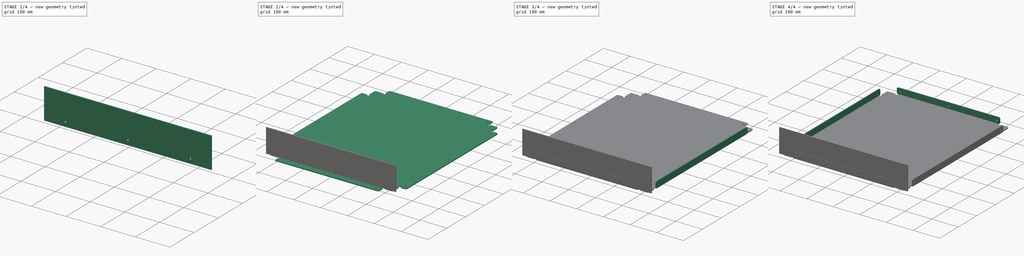
[diagram: build sequence overview — one tinted view per stage of 4, left to right]
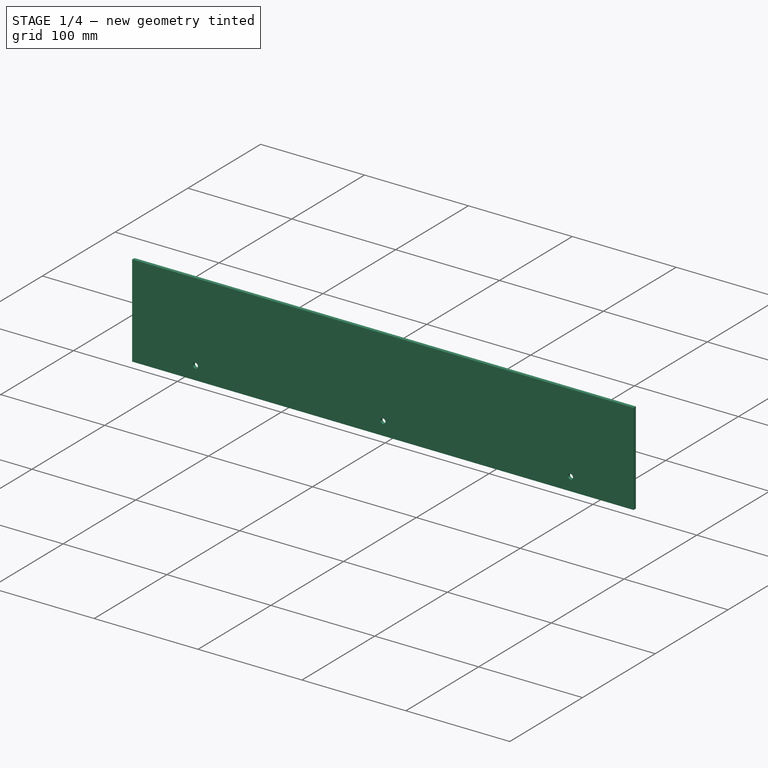
[diagram: stage 1 of 4 — iso view after this stage's code; geometry added in this stage tinted green]
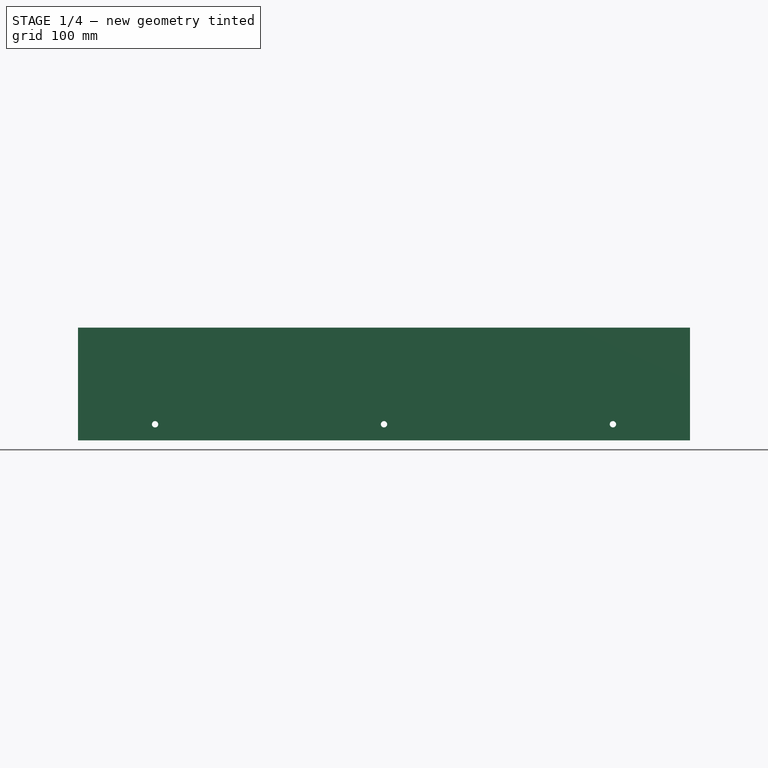
[diagram: stage 1 of 4 — front view after this stage's code; geometry added in this stage tinted green]
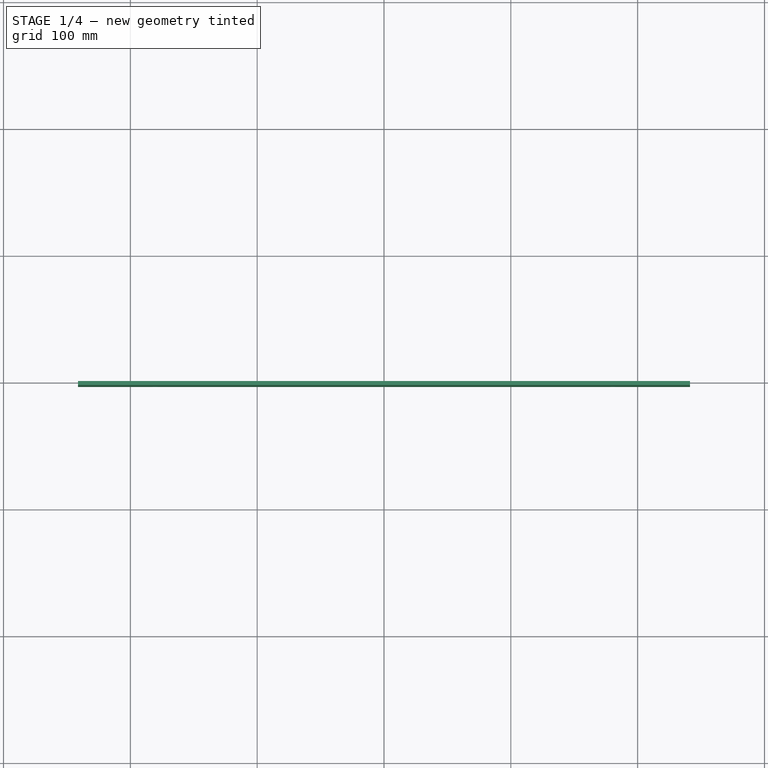
[diagram: stage 1 of 4 — top view after this stage's code; geometry added in this stage tinted green]
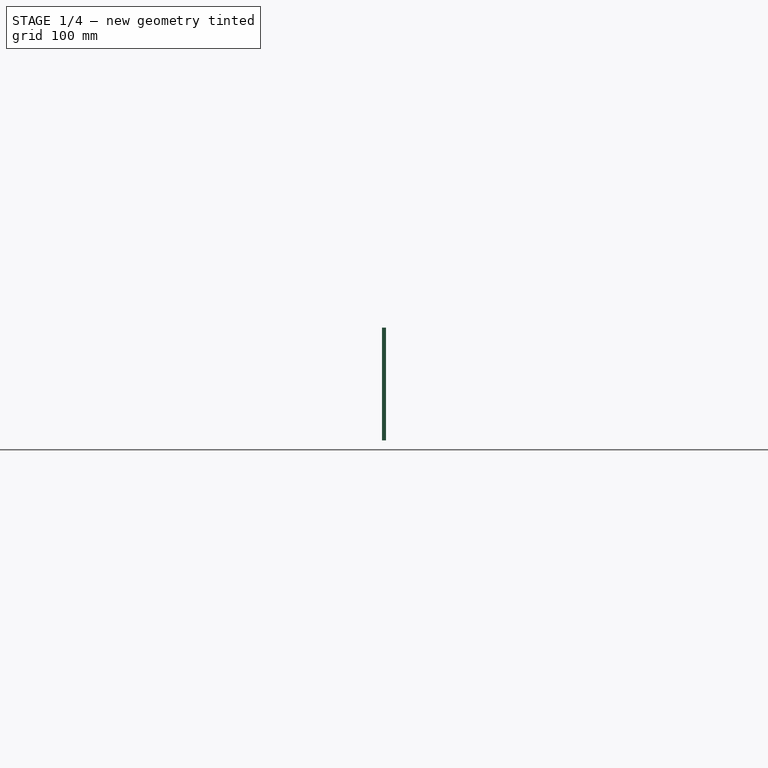
[diagram: stage 1 of 4 — right view after this stage's code; geometry added in this stage tinted green]
FCSTD DOCUMENT  (FreeCAD 0.19R24291 (Git))
Label: TwoU_Chassis
License: All rights reserved
LicenseURL: http://en.wikipedia.org/wiki/All_rights_reserved
objects: Sketcher::SketchObject×9, PartDesign::FeaturePython×4, PartDesign::Pocket×3, PartDesign::Pad×2, PartDesign::Body×2, App::Part×2, Spreadsheet::Sheet×1
note: 25 computed .brp shape members not serialized (recipe doc carries the construction recipe); baked Part::Feature solids carry a one-line shape summary decoded from their .brp

FEATURE [Sketcher::SketchObject] Sketch007
  FullyConstrained = true
  MapMode = 5
  Placement = pos=(0,0,0) rot=(1,0,0;1.5708rad)
  Support = -> [XZ_Plane003]
  sketch-geometry (4):
    g0: LineSegment StartX=-241.3 StartY=88.9 StartZ=0 EndX=241.3 EndY=88.9 EndZ=0
    g1: LineSegment StartX=241.3 StartY=88.9 StartZ=0 EndX=241.3 EndY=0 EndZ=0
    g2: LineSegment StartX=241.3 StartY=0 StartZ=0 EndX=-241.3 EndY=0 EndZ=0
    g3: LineSegment StartX=-241.3 StartY=0 StartZ=0 EndX=-241.3 EndY=88.9 EndZ=0
  constraints (11):
    c: Coincident(g0,g1)
    c: Coincident(g1,g2)
    c: Coincident(g2,g3)
    c: Coincident(g3,g0)
    c: Horizontal(g0)
    c: Vertical(g1)
    c: Vertical(g3)
    c: DistanceX(g0,g0) = 482.6
    c: DistanceY(g1,g1) = 88.9
    c: Symmetric(g1,g2,g-2)
    c: DistanceY(g-1,g2) = 0
FEATURE [PartDesign::Pad] Pad001  label="PadFrontPanelTwoU"
  Direction = (1,1,1)
  Length = 3.175
  Length2 = 100
  Placement = pos=(0,0,0) rot=(1,0,0;1.5708rad)
  Profile = -> Sketch007
  Type = 0
  expr: Length = <<Spreadsheet_TwoU>>.MaterialThickness
FEATURE [PartDesign::Body] Body  label="BodyChassis"
  Group = -> [Sketch,Pad,Pocket001,Sketch005,Pocket,Sketch004,Sketch003,Sketch002,Sketch001,Sketch006,Fold,Fold001,Fold002,Fold003]
  Origin = -> Origin001
  Tip = -> Fold003
FEATURE [App::Part] Part  label="PartChassis"
  Group = -> [Body]
  Origin = -> Origin
FEATURE [Sketcher::SketchObject] Sketch008
  FullyConstrained = true
  MapMode = 5
  Placement = pos=(0,-3.175,-1.4e-15) rot=(1,0,0;1.5708rad)
  Support = -> [Pad001]
  expr: Constraints[4] = <<Sketch_CoverHoles>>.Constraints.FrontHoleSpaceing
  expr: Constraints[2] = <<Spreadsheet_TwoU>>.CoverHole_Clearance
  expr: Constraints[1] = <<Spreadsheet_TwoU>>.CoverHoleOffsetAboveBend
  sketch-geometry (3):
    g0: Circle CenterX=-180.5 CenterY=12.7 CenterZ=0 NormalX=0 NormalY=0 NormalZ=1 AngleXU=0 Radius=2.5
    g1: Circle CenterX=180.5 CenterY=12.7 CenterZ=0 NormalX=0 NormalY=0 NormalZ=1 AngleXU=0 Radius=2.5
    g2: Circle CenterX=1.07e-14 CenterY=12.7 CenterZ=0 NormalX=0 NormalY=0 NormalZ=1 AngleXU=0 Radius=2.5
  constraints (7):
    c: Symmetric(g0,g1,g-2)
    c: DistanceY(g-1,g0) = 12.7
    c: Diameter(g0) = 5
    c: Equal(g1,g0)
    c: DistanceX(g0,g1) = 361
    c: Equal(g0,g2)
    c: Symmetric(g0,g1,g2)
FEATURE [PartDesign::Pocket] Pocket002
  BaseFeature = -> Pad001
  Length = 5
  Length2 = 100
  Placement = pos=(0,0,0) rot=(1,0,0;1.5708rad)
  Profile = -> Sketch008
  Type = 1
FEATURE [PartDesign::Body] Body001  label="BodyFrontPanelTwoU"
  Group = -> [Sketch007,Pad001,Sketch008,Pocket002]
  Origin = -> Origin003
  Placement = pos=(0,-4,0) rot=(0,0,1;0rad)
  Tip = -> Pocket002
FEATURE [App::Part] Part001  label="PartFrontPanelTwoU"
  Group = -> [Body001]
  Origin = -> Origin002
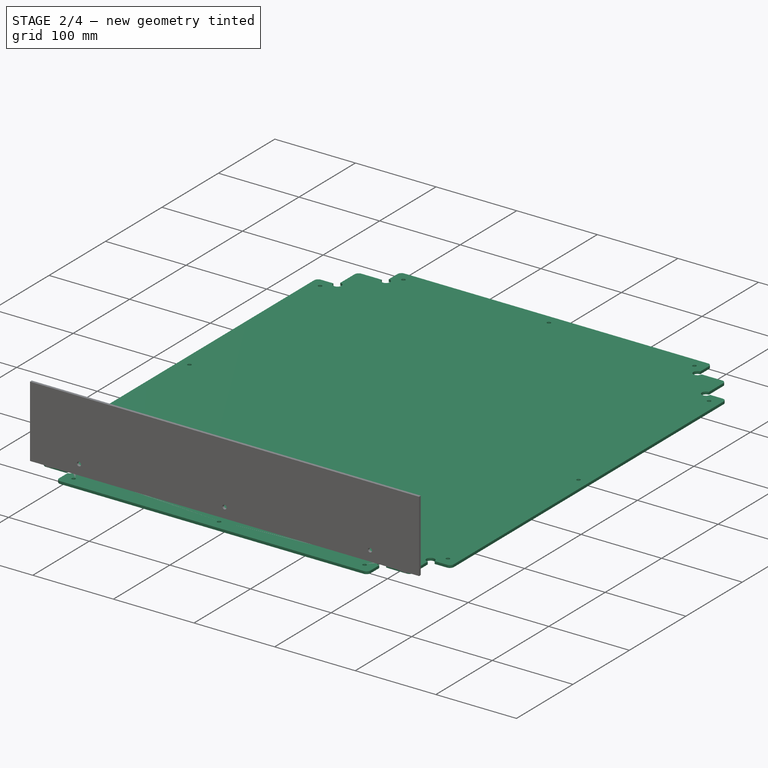
[diagram: stage 2 of 4 — iso view after this stage's code; geometry added in this stage tinted green]
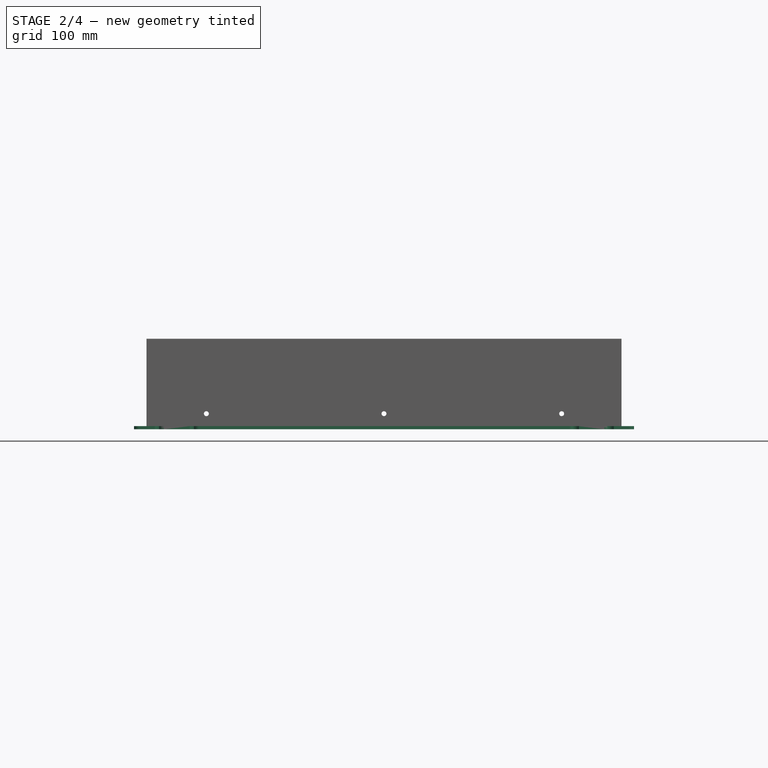
[diagram: stage 2 of 4 — front view after this stage's code; geometry added in this stage tinted green]
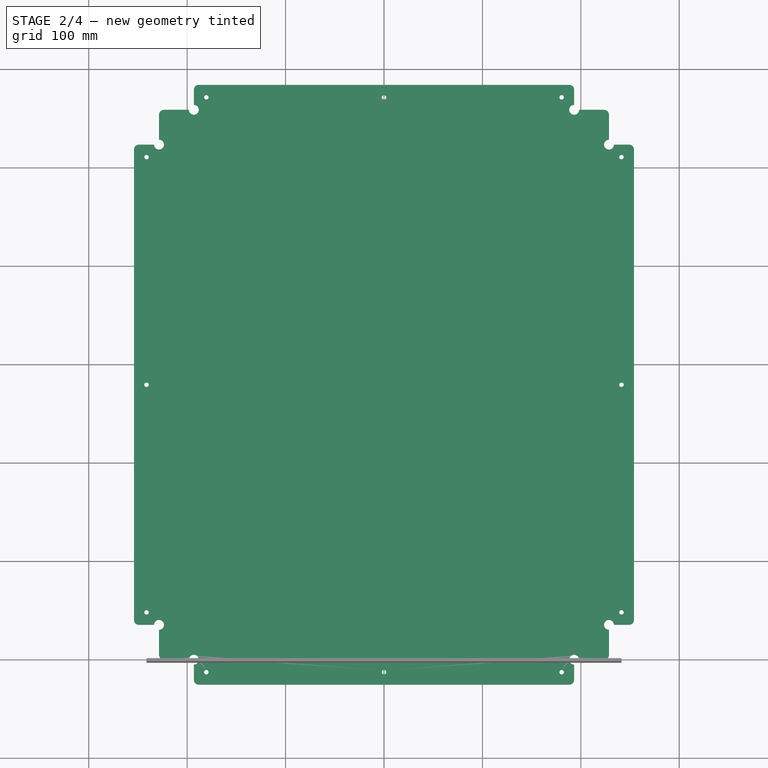
[diagram: stage 2 of 4 — top view after this stage's code; geometry added in this stage tinted green]
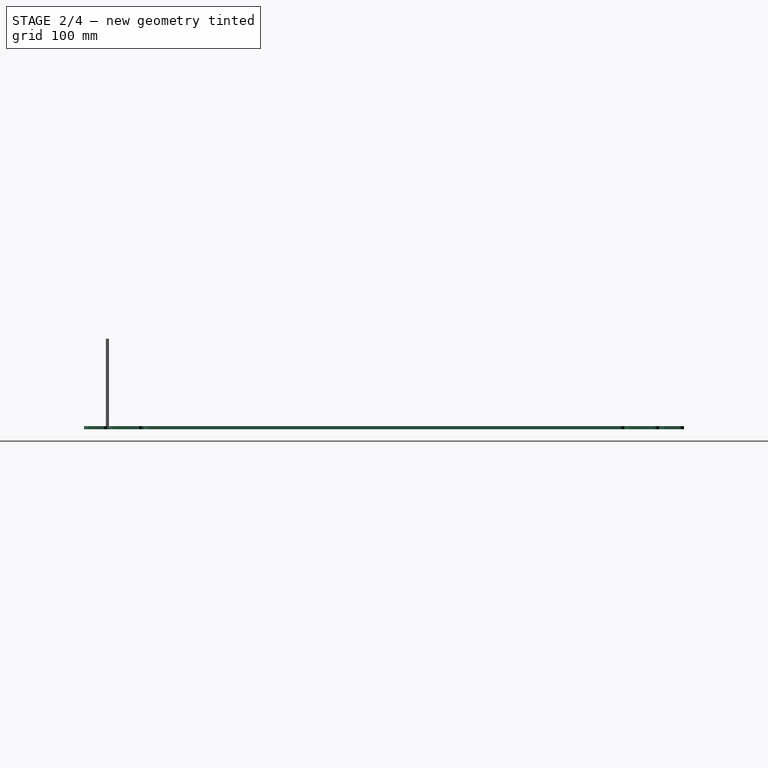
[diagram: stage 2 of 4 — right view after this stage's code; geometry added in this stage tinted green]
FEATURE [Sketcher::SketchObject] Sketch
  FullyConstrained = false
  MapMode = 5
  Support = -> [XY_Plane001]
  expr: Constraints[71] = <<Spreadsheet_TwoU>>.Width_Overall
  expr: Constraints[14] = <<Spreadsheet_TwoU>>.Corner_Radius
  expr: Constraints[70] = <<Spreadsheet_TwoU>>.Dept_Overall
  expr: Constraints[75] = <<Spreadsheet_TwoU>>.Corner_Radius
  expr: Constraints[60] = <<Spreadsheet_TwoU>>.CenterVert
  expr: Constraints[52] = <<Spreadsheet_TwoU>>.Corner_Radius
  expr: Constraints[125] = <<Spreadsheet_TwoU>>.Flange_Height
  expr: Constraints[126] = <<Spreadsheet_TwoU>>.Flange_Height
  expr: Constraints[118] = <<Spreadsheet_TwoU>>.Flange_Height
  sketch-geometry (46):
    g0: LineSegment StartX=-223.6 StartY=558.8 StartZ=0 EndX=-198.2 EndY=558.8 EndZ=0
    g1: LineSegment StartX=228.6 StartY=553.8 StartZ=0 EndX=228.6 EndY=528.4 EndZ=0
    g2: LineSegment StartX=223.6 StartY=0 StartZ=0 EndX=198.2 EndY=0 EndZ=0
    g3: LineSegment StartX=-228.6 StartY=5 StartZ=0 EndX=-228.6 EndY=30.4 EndZ=0
    g4: ArcOfCircle CenterX=223.6 CenterY=553.8 CenterZ=0 NormalX=0 NormalY=0 NormalZ=1 AngleXU=0 Radius=5 StartAngle=-5.3e-15 EndAngle=1.57079
    g5: ArcOfCircle CenterX=223.6 CenterY=5 CenterZ=0 NormalX=0 NormalY=0 NormalZ=1 AngleXU=0 Radius=5 StartAngle=4.71239 EndAngle=6.28327
    g6: ArcOfCircle CenterX=-223.6 CenterY=553.8 CenterZ=0 NormalX=0 NormalY=0 NormalZ=1 AngleXU=0 Radius=5 StartAngle=1.5708 EndAngle=3.14159
    g7: ArcOfCircle CenterX=-223.6 CenterY=5 CenterZ=0 NormalX=0 NormalY=0 NormalZ=1 AngleXU=0 Radius=5 StartAngle=3.14159 EndAngle=4.71239
    g8: LineSegment StartX=193.2 StartY=563.8 StartZ=0 EndX=193.2 EndY=579.2 EndZ=0
    g9: LineSegment StartX=188.2 StartY=584.2 StartZ=0 EndX=-188.2 EndY=584.2 EndZ=0
    g10: LineSegment StartX=-193.2 StartY=579.2 StartZ=0 EndX=-193.2 EndY=563.8 EndZ=0
    g11: LineSegment StartX=-249 StartY=523.4 StartZ=0 EndX=-233.6 EndY=523.4 EndZ=0
    g12: LineSegment StartX=-233.6 StartY=35.4 StartZ=0 EndX=-249 EndY=35.4 EndZ=0
    g13: LineSegment StartX=-254 StartY=40.4 StartZ=0 EndX=-254 EndY=518.4 EndZ=0
    g14: LineSegment StartX=193.2 StartY=-5 StartZ=0 EndX=193.2 EndY=-20.4 EndZ=0
    g15: LineSegment StartX=188.2 StartY=-25.4 StartZ=0 EndX=-188.2 EndY=-25.4 EndZ=0
    g16: LineSegment StartX=-193.2 StartY=-20.4 StartZ=0 EndX=-193.2 EndY=-5 EndZ=0
    g17: LineSegment StartX=233.6 StartY=523.4 StartZ=0 EndX=249 EndY=523.4 EndZ=0
    g18: LineSegment StartX=254 StartY=518.4 StartZ=0 EndX=254 EndY=40.4 EndZ=0
    g19: LineSegment StartX=249 StartY=35.4 StartZ=0 EndX=233.6 EndY=35.4 EndZ=0
    g20: LineSegment StartX=198.2 StartY=558.8 StartZ=0 EndX=223.6 EndY=558.8 EndZ=0
    g21: LineSegment StartX=228.6 StartY=30.4 StartZ=0 EndX=228.6 EndY=5.00041 EndZ=0
    g22: LineSegment StartX=-198.2 StartY=0 StartZ=0 EndX=-223.6 EndY=0 EndZ=0
    g23: LineSegment StartX=-228.6 StartY=528.4 StartZ=0 EndX=-228.6 EndY=553.8 EndZ=0
    g24: ArcOfCircle CenterX=-249 CenterY=518.4 CenterZ=0 NormalX=0 NormalY=0 NormalZ=1 AngleXU=0 Radius=5 StartAngle=1.5708 EndAngle=3.14159
    g25: ArcOfCircle CenterX=-249 CenterY=40.4 CenterZ=0 NormalX=0 NormalY=0 NormalZ=1 AngleXU=0 Radius=5 StartAngle=3.14159 EndAngle=4.71239
    g26: ArcOfCircle CenterX=-188.2 CenterY=579.2 CenterZ=0 NormalX=0 NormalY=0 NormalZ=1 AngleXU=0 Radius=5 StartAngle=1.5708 EndAngle=3.14159
    g27: ArcOfCircle CenterX=188.2 CenterY=579.2 CenterZ=0 NormalX=0 NormalY=0 NormalZ=1 AngleXU=0 Radius=5 StartAngle=7.7e-15 EndAngle=1.5708
    g28: ArcOfCircle CenterX=-188.2 CenterY=-20.4 CenterZ=0 NormalX=0 NormalY=0 NormalZ=1 AngleXU=0 Radius=5 StartAngle=3.14159 EndAngle=4.71239
    g29: ArcOfCircle CenterX=188.2 CenterY=-20.4 CenterZ=0 NormalX=0 NormalY=0 NormalZ=1 AngleXU=0 Radius=5 StartAngle=4.71239 EndAngle=6.28319
    g30: ArcOfCircle CenterX=249 CenterY=518.4 CenterZ=0 NormalX=0 NormalY=0 NormalZ=1 AngleXU=0 Radius=5 StartAngle=-6.2e-15 EndAngle=1.5708
    g31: ArcOfCircle CenterX=249 CenterY=40.4 CenterZ=0 NormalX=0 NormalY=0 NormalZ=1 AngleXU=0 Radius=5 StartAngle=4.71239 EndAngle=6.28319
    g32: GeomPoint X=0 Y=279.4 Z=0
    g33: LineSegment StartX=-228.6 StartY=558.8 StartZ=0 EndX=228.6 EndY=558.8 EndZ=0
    g34: LineSegment StartX=228.6 StartY=558.8 StartZ=0 EndX=228.6 EndY=0 EndZ=0
    g35: LineSegment StartX=228.6 StartY=-1.66e-14 StartZ=0 EndX=-228.6 EndY=-1.66e-14 EndZ=0
    g36: LineSegment StartX=-228.6 StartY=-1.66e-14 StartZ=0 EndX=-228.6 EndY=558.8 EndZ=0
    g37: LineSegment StartX=-76.2378 StartY=109.319 StartZ=0 EndX=9.8448 EndY=301.363 EndZ=0
    g38: ArcOfCircle CenterX=-228.6 CenterY=523.4 CenterZ=0 NormalX=0 NormalY=0 NormalZ=1 AngleXU=0 Radius=5 StartAngle=3.14159 EndAngle=7.85398
    g39: ArcOfCircle CenterX=-193.2 CenterY=558.8 CenterZ=0 NormalX=0 NormalY=0 NormalZ=1 AngleXU=0 Radius=5 StartAngle=3.14159 EndAngle=7.85398
    g40: ArcOfCircle CenterX=193.2 CenterY=558.8 CenterZ=0 NormalX=0 NormalY=0 NormalZ=1 AngleXU=0 Radius=5 StartAngle=1.5708 EndAngle=6.28319
    g41: ArcOfCircle CenterX=228.6 CenterY=523.4 CenterZ=0 NormalX=0 NormalY=0 NormalZ=1 AngleXU=0 Radius=5 StartAngle=1.5708 EndAngle=6.28319
    g42: ArcOfCircle CenterX=228.6 CenterY=35.4 CenterZ=0 NormalX=0 NormalY=0 NormalZ=1 AngleXU=0 Radius=5 StartAngle=6.38e-14 EndAngle=4.71239
    g43: ArcOfCircle CenterX=193.2 CenterY=-1.66e-14 CenterZ=0 NormalX=0 NormalY=0 NormalZ=1 AngleXU=0 Radius=5 StartAngle=3.3e-15 EndAngle=4.71239
    g44: ArcOfCircle CenterX=-228.6 CenterY=35.4 CenterZ=0 NormalX=0 NormalY=0 NormalZ=1 AngleXU=0 Radius=5 StartAngle=4.71239 EndAngle=9.42478
    g45: ArcOfCircle CenterX=-193.2 CenterY=-1.66e-14 CenterZ=0 NormalX=0 NormalY=0 NormalZ=1 AngleXU=0 Radius=5 StartAngle=4.71239 EndAngle=9.42478
  constraints (127):
    c: Vertical(g1)
    c: Vertical(g3)
    c: PointOnObject(g-1,g2)
    c: Coincident(g20,g4) = 1.5708
    c: Tangent(g1,g4) = 1.5708
    c: Tangent(g2,g5) = 1.5708
    c: Coincident(g21,g5) = 1.5708
    c: Coincident(g23,g6) = 1.5708
    c: Tangent(g0,g6) = 1.5708
    c: Tangent(g3,g7) = 1.5708
    c: Coincident(g22,g7) = 1.5708
    c: Horizontal(g2)
    c: Equal(g6,g7)
    c: Equal(g7,g5)
    c: Radius(g6) = 5
    c: Symmetric(g6,g4,g-2)
    c: Horizontal(g9)
    c: Vertical(g8)
    c: Vertical(g10)
    c: Horizontal(g11)
    c: Horizontal(g12)
    c: Vertical(g13)
    c: Horizontal(g15)
    c: Vertical(g14)
    c: Vertical(g16)
    c: Horizontal(g17)
    c: Horizontal(g19)
    c: Vertical(g18)
    c: Tangent(g0,g20)
    c: Tangent(g1,g21)
    c: Tangent(g2,g22)
    c: Tangent(g3,g23)
    c: Tangent(g13,g24) = 1.5708
    c: Tangent(g11,g24) = 1.5708
    c: Tangent(g13,g25) = 1.5708
    c: Tangent(g12,g25) = 1.5708
    c: Tangent(g10,g26) = -1.5708
    c: Tangent(g9,g26) = -1.5708
    c: Tangent(g9,g27) = -1.5708
    c: Tangent(g8,g27) = -1.5708
    c: Tangent(g16,g28) = 1.5708
    c: Tangent(g15,g28) = 1.5708
    c: Tangent(g14,g29) = 1.5708
    c: Tangent(g15,g29) = 1.5708
    c: Tangent(g17,g30) = 1.5708
    c: Tangent(g18,g30) = 1.5708
    c: Tangent(g19,g31) = 1.5708
    c: Tangent(g18,g31) = 1.5708
    c: Horizontal(g24,g30)
    c: Horizontal(g25,g31)
    c: Vertical(g24,g25)
    c: Vertical(g30,g31)
    c: Radius(g24) = 5
    c: Equal(g24,g30)
    c: Horizontal(g26,g27)
    c: Horizontal(g28,g29)
    c: Vertical(g26,g28)
    c: Equal(g26,g24)
    c: Equal(g24,g28)
    c: PointOnObject(g32,g-2)
    c: DistanceY(g-1,g32) = 279.4
    c: Coincident(g33,g34)
    c: Coincident(g34,g35)
    c: Coincident(g35,g36)
    c: Coincident(g36,g33)
    c: Horizontal(g33)
    c: Horizontal(g35)
    c: Vertical(g34)
    c: Vertical(g36)
    c: Symmetric(g33,g34,g32)
    c: DistanceY(g36,g36) = 558.8
    c: DistanceX(g33,g33) = 457.2
    c: Tangent(g6,g36) = 1.5708
    c: PointOnObject(g32,g37)
    c: Equal(g4,g6)
    c: Radius(g39) = 5
    c: Equal(g39,g38)
    c: Equal(g38,g44)
    c: Equal(g44,g45)
    c: Equal(g45,g43)
    c: Equal(g43,g40)
    c: Equal(g40,g41)
    c: Equal(g41,g42)
    c: Coincident(g8,g40)
    c: Coincident(g20,g40)
    c: Coincident(g1,g41)
    c: Coincident(g17,g41)
    c: Coincident(g21,g42)
    c: Coincident(g19,g42)
    c: Coincident(g2,g43)
    c: Coincident(g14,g43)
    c: Coincident(g22,g45)
    c: Coincident(g16,g45)
    c: Coincident(g12,g44)
    c: Coincident(g3,g44)
    c: Coincident(g11,g38)
    c: Coincident(g23,g38)
    c: Coincident(g10,g39)
    c: Coincident(g0,g39)
    c: PointOnObject(g38,g36)
    c: PointOnObject(g39,g33)
    c: PointOnObject(g45,g35)
    c: PointOnObject(g44,g36)
    c: PointOnObject(g43,g35)
    c: PointOnObject(g42,g34)
    c: PointOnObject(g41,g34)
    c: PointOnObject(g40,g33)
    c: Vertical(g40,g43)
    c: Angle(g40) = 4.71239
    c: Angle(g41) = 4.71239
    c: Angle(g42) = 4.71239
    c: Angle(g43) = 4.71239
    c: Angle(g45) = 4.71239
    c: Angle(g44) = 4.71239
    c: Angle(g38) = 4.71239
    c: Angle(g39) = 4.71239
    c: Vertical(g39,g45)
    c: Equal(g11,g10)
    c: DistanceY(g23,g23) = 25.4
    c: Equal(g23,g0)
    c: Equal(g23,g3)
    c: Equal(g3,g22)
    c: Equal(g1,g20)
    c: PointOnObject(g20,g33)
    c: Equal(g8,g17)
    c: DistanceY(g20,g9) = 25.4
    c: DistanceY(g15,g22) = 25.4
FEATURE [PartDesign::Pad] Pad  label="PadChassis"
  Direction = (1,1,1)
  Length = 3.175
  Length2 = 100
  Profile = -> Sketch
  Reversed = true
  Type = 0
  expr: Length = <<Spreadsheet_TwoU>>.MaterialThickness
FEATURE [Spreadsheet::Sheet] Spreadsheet  label="Spreadsheet_TwoU"
  cells = A2=Mechanical components of TwoU OEDCS; A3=Assumptions; A4=Cover screws are 5mm thread forming; A13=Chassis; A14=Note dimensions from the center front edge; A16=Width_Overall; B16(Width_Overall)==18 * 25.4mm; A17=Dept_Overall; B17(Dept_Overall)==22 * 25.4mm; A18=Flange_Height; B18(Flange_Height)=25.4; A19=MaterialThickness; B19(MaterialThickness)==1 / 8 * 25.4mm; A20=Corner_Radius; B20(Corner_Radius)==5mm; A21=CenterHorz; B21(CenterHorz)==B16 / 2; A22=CenterVert; B22(CenterVert)==B17 / 2; A24=FeetDiameter; B24(FeetDiameter)==20mm; A25=FeetFromEdge; B25(FeetFromEdge)==10mm; A26=FeetWidth; B26(FeetWidth)==Width_Overall - 2 * FeetFromEdge - FeetDiameter / 2; A27=FeetHeight; B27(FeetHeight)==Dept_Overall - 2 * FeetFromEdge - FeetDiameter; A28=FeetHoleDiameter; B28(FeetHoleDiameter)==5mm; A30=CoverHoles; A31=CoverHoleHoleDiameter; B31(CoverHoleHoleDiameter)==4.5mm; C31=Requires thread forming 5mm; A32=CoverHoleOffsetAboveBend; B32(CoverHoleOffsetAboveBend)==Flange_Height / 2; C32=1/2 flang height; A37=Front Panel; A39=CoverHole_Clearance; B39(CoverHole_Clearance)==5mm
FEATURE [Sketcher::SketchObject] Sketch001
  ExternalGeometry = -> [Pad,Sketch]
  FullyConstrained = false
  MapMode = 5
  Support = -> [Pad]
  expr: Constraints[1] = <<Spreadsheet_TwoU>>.Flange_Height
  sketch-geometry (1):
    g0: LineSegment StartX=-275.064 StartY=0 StartZ=0 EndX=266.7 EndY=0 EndZ=0
  constraints (2):
    c: Horizontal(g0)
    c: DistanceY(g-7,g0) = 25.4
FEATURE [Sketcher::SketchObject] Sketch002
  FullyConstrained = false
  MapMode = 5
  Support = -> [XY_Plane001]
  expr: Constraints[1] = <<Spreadsheet_TwoU>>.Dept_Overall
  sketch-geometry (1):
    g0: LineSegment StartX=-289.235 StartY=558.8 StartZ=0 EndX=322.119 EndY=558.8 EndZ=0
  constraints (2):
    c: Horizontal(g0)
    c: DistanceY(g-1,g0) = 558.8
FEATURE [Sketcher::SketchObject] Sketch003
  FullyConstrained = false
  MapMode = 5
  Support = -> [XY_Plane001]
  expr: Constraints[1] = <<Spreadsheet_TwoU>>.Width_Overall / 2
  sketch-geometry (1):
    g0: LineSegment StartX=-228.6 StartY=629.588 StartZ=0 EndX=-228.6 EndY=-38.1 EndZ=0
  constraints (2):
    c: Vertical(g0)
    c: DistanceX(g0,g-1) = 228.6
FEATURE [Sketcher::SketchObject] Sketch004
  FullyConstrained = false
  MapMode = 5
  Support = -> [XY_Plane001]
  expr: Constraints[1] = <<Spreadsheet_TwoU>>.Width_Overall / 2
  sketch-geometry (1):
    g0: LineSegment StartX=228.6 StartY=635 StartZ=0 EndX=228.6 EndY=-30.5618 EndZ=0
  constraints (2):
    c: Vertical(g0)
    c: DistanceX(g-1,g0) = 228.6
FEATURE [Sketcher::SketchObject] Sketch005  label="Sketch_Feet"
  FullyConstrained = true
  MapMode = 5
  Support = -> [XY_Plane001]
  expr: Constraints[0] = <<Spreadsheet_TwoU>>.FeetHoleDiameter
  expr: Constraints[18] = <<Spreadsheet_TwoU>>.FeetFromEdge + <<Spreadsheet_TwoU>>.FeetDiameter / 2
  expr: Constraints[17] = <<Spreadsheet_TwoU>>.FeetHeight
  expr: Constraints[15] = <<Spreadsheet_TwoU>>.FeetWidth
  sketch-geometry (8):
    g0: Circle CenterX=-213.6 CenterY=538.8 CenterZ=0 NormalX=0 NormalY=0 NormalZ=1 AngleXU=0 Radius=2.5
    g1: Circle CenterX=213.6 CenterY=538.8 CenterZ=0 NormalX=0 NormalY=0 NormalZ=1 AngleXU=0 Radius=2.5
    g2: Circle CenterX=-213.6 CenterY=20 CenterZ=0 NormalX=0 NormalY=0 NormalZ=1 AngleXU=0 Radius=2.5
    g3: Circle CenterX=213.6 CenterY=20 CenterZ=0 NormalX=0 NormalY=0 NormalZ=1 AngleXU=0 Radius=2.5
    g4: LineSegment StartX=-213.6 StartY=538.8 StartZ=0 EndX=213.6 EndY=538.8 EndZ=0
    g5: LineSegment StartX=213.6 StartY=538.8 StartZ=0 EndX=213.6 EndY=20 EndZ=0
    g6: LineSegment StartX=213.6 StartY=20 StartZ=0 EndX=-213.6 EndY=20 EndZ=0
    g7: LineSegment StartX=-213.6 StartY=20 StartZ=0 EndX=-213.6 EndY=538.8 EndZ=0
  constraints (19):
    c: Diameter(g0) = 5
    c: Equal(g0,g1)
    c: Equal(g1,g3)
    c: Equal(g3,g2)
    c: Coincident(g4,g5)
    c: Coincident(g5,g6)
    c: Coincident(g6,g7)
    c: Coincident(g7,g4)
    c: Horizontal(g6)
    c: Vertical(g5)
    c: Vertical(g7)
    c: Coincident(g0,g4)
    c: Coincident(g2,g6)
    c: Coincident(g1,g4)
    c: Coincident(g3,g5)
    c: DistanceX(g4,g4) = 427.2
    c: Symmetric(g0,g1,g-2)
    c: DistanceY(g5,g5) = 518.8
    c: DistanceY(g-1,g3) = 20
FEATURE [Sketcher::SketchObject] Sketch006  label="Sketch_CoverHoles"
  ExternalGeometry = -> [Sketch]
  FullyConstrained = true
  MapMode = 5
  Support = -> [XY_Plane001]
  expr: Constraints[37] = <<Spreadsheet_TwoU>>.CoverHoleOffsetAboveBend
  expr: Constraints[25] = <<Spreadsheet_TwoU>>.CoverHoleOffsetAboveBend
  expr: Constraints[13] = <<Spreadsheet_TwoU>>.CoverHoleOffsetAboveBend
  expr: Constraints[12] = <<Spreadsheet_TwoU>>.CoverHoleOffsetAboveBend
  expr: Constraints[10] = <<Spreadsheet_TwoU>>.CoverHoleOffsetAboveBend
  expr: Constraints[8] = <<Spreadsheet_TwoU>>.CoverHoleOffsetAboveBend
  expr: Constraints[0] = <<Spreadsheet_TwoU>>.CoverHoleHoleDiameter
  sketch-geometry (20):
    g0: Circle CenterX=-180.5 CenterY=-12.7 CenterZ=0 NormalX=0 NormalY=0 NormalZ=1 AngleXU=0 Radius=2.25
    g1: Circle CenterX=180.5 CenterY=-12.7 CenterZ=0 NormalX=0 NormalY=0 NormalZ=1 AngleXU=0 Radius=2.25
    g2: Circle CenterX=-241.3 CenterY=510.7 CenterZ=0 NormalX=0 NormalY=0 NormalZ=1 AngleXU=0 Radius=2.25
    g3: Circle CenterX=-241.3 CenterY=48.1 CenterZ=0 NormalX=0 NormalY=0 NormalZ=1 AngleXU=0 Radius=2.25
    g4: Circle CenterX=-180.5 CenterY=571.5 CenterZ=0 NormalX=0 NormalY=0 NormalZ=1 AngleXU=0 Radius=2.25
    g5: Circle CenterX=180.5 CenterY=571.5 CenterZ=0 NormalX=0 NormalY=0 NormalZ=1 AngleXU=0 Radius=2.25
    g6: Circle CenterX=241.3 CenterY=510.7 CenterZ=0 NormalX=0 NormalY=0 NormalZ=1 AngleXU=0 Radius=2.25
    g7: Circle CenterX=241.3 CenterY=48.1 CenterZ=0 NormalX=0 NormalY=0 NormalZ=1 AngleXU=0 Radius=2.25
    g8: LineSegment StartX=-241.3 StartY=510.7 StartZ=0 EndX=241.3 EndY=510.7 EndZ=0
    g9: LineSegment StartX=241.3 StartY=510.7 StartZ=0 EndX=241.3 EndY=48.1 EndZ=0
    g10: LineSegment StartX=241.3 StartY=48.1 StartZ=0 EndX=-241.3 EndY=48.1 EndZ=0
    g11: LineSegment StartX=-241.3 StartY=48.1 StartZ=0 EndX=-241.3 EndY=510.7 EndZ=0
    g12: LineSegment StartX=-180.5 StartY=571.5 StartZ=0 EndX=180.5 EndY=571.5 EndZ=0
    g13: LineSegment StartX=180.5 StartY=571.5 StartZ=0 EndX=180.5 EndY=-12.7 EndZ=0
    g14: LineSegment StartX=180.5 StartY=-12.7 StartZ=0 EndX=-180.5 EndY=-12.7 EndZ=0
    g15: LineSegment StartX=-180.5 StartY=-12.7 StartZ=0 EndX=-180.5 EndY=571.5 EndZ=0
    g16: Circle CenterX=0 CenterY=-12.7 CenterZ=0 NormalX=0 NormalY=0 NormalZ=1 AngleXU=0 Radius=2.25
    g17: Circle CenterX=-241.3 CenterY=279.4 CenterZ=0 NormalX=0 NormalY=0 NormalZ=1 AngleXU=0 Radius=2.25
    g18: Circle CenterX=2.7e-15 CenterY=571.5 CenterZ=0 NormalX=0 NormalY=0 NormalZ=1 AngleXU=0 Radius=2.25
    g19: Circle CenterX=241.3 CenterY=279.4 CenterZ=0 NormalX=0 NormalY=0 NormalZ=1 AngleXU=0 Radius=2.25
  constraints (48):
    c: Diameter(g4) = 4.5
    c: Equal(g4,g5)
    c: Equal(g5,g6)
    c: Equal(g6,g7)
    c: Equal(g7,g1)
    c: Equal(g1,g0)
    c: Equal(g0,g3)
    c: Equal(g3,g2)
    c: DistanceX(g2,g-3) = 12.7
    c: Vertical(g3,g2)
    c: DistanceY(g-5,g4) = 12.7
    c: Horizontal(g5,g4)
    c: DistanceY(g0,g-6) = 12.7
    c: DistanceX(g-4,g6) = 12.7
    c: Coincident(g8,g9)
    c: Coincident(g9,g10)
    c: Coincident(g10,g11)
    c: Coincident(g11,g8)
    c: Horizontal(g8)
    c: Horizontal(g10)
    c: Symmetric(g8,g9,g-7)
    c: Coincident(g2,g8)
    c: Coincident(g3,g10)
    c: Coincident(g6,g8)
    c: Coincident(g7,g9)
    c: DistanceY(g2,g-8) = 12.7
    c: Coincident(g12,g13)
    c: Coincident(g13,g14)
    c: Coincident(g14,g15)
    c: Coincident(g15,g12)
    c: Vertical(g13)
    c: Vertical(g15)
    c: Symmetric(g12,g13,g-7)
    c: Coincident(g12,g4)
    c: Coincident(g12,g5)
    c: Coincident(g0,g14)
    c: Coincident(g13,g1)
    c: DistanceX(g-9,g0) = 12.7
    c: DistanceX(g0,g1) = 361  'FrontHoleSpaceing'
    c: Equal(g0,g16)
    c: Vertical(g16,g-1)
    c: Horizontal(g16,g0)
    c: Equal(g4,g17)
    c: Equal(g17,g18)
    c: Equal(g18,g19)
    c: Symmetric(g2,g3,g17)
    c: Symmetric(g4,g5,g18)
    c: Symmetric(g6,g7,g19)
FEATURE [PartDesign::Pocket] Pocket001  label="Pocket_CoverHoles"
  BaseFeature = -> Pad
  Length = 5
  Length2 = 100
  Profile = -> Sketch006
  Type = 1
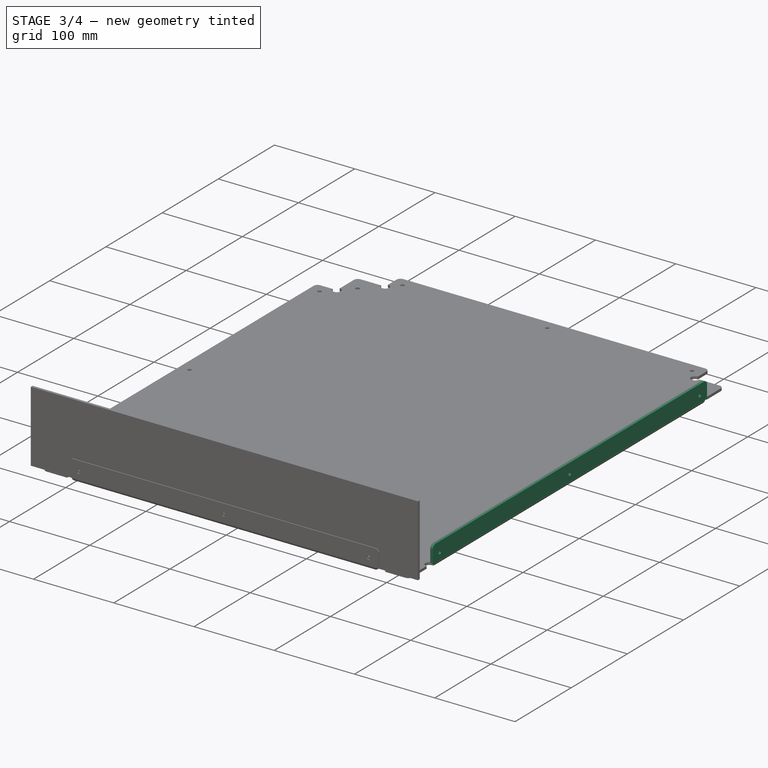
[diagram: stage 3 of 4 — iso view after this stage's code; geometry added in this stage tinted green]
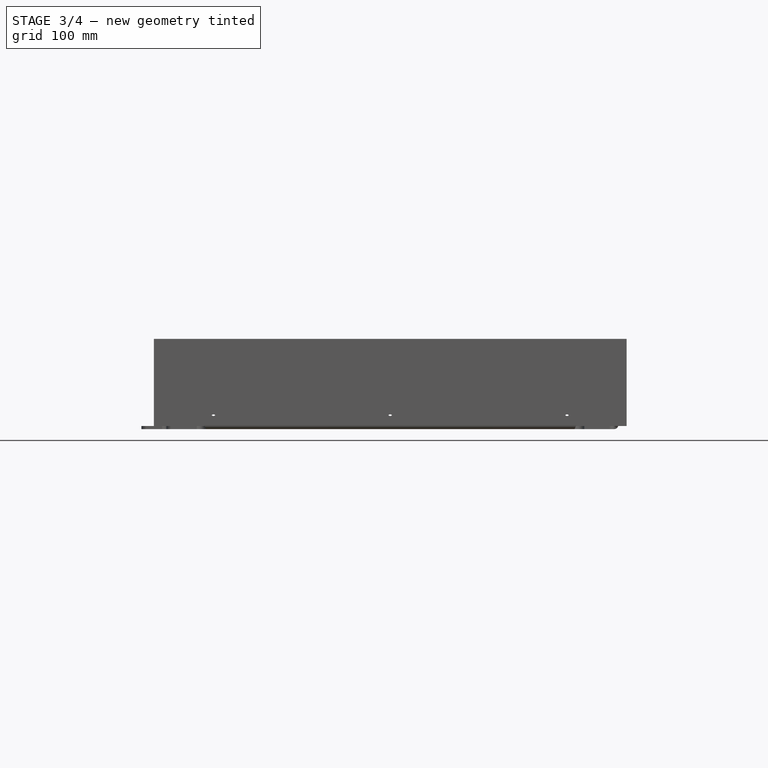
[diagram: stage 3 of 4 — front view after this stage's code; geometry added in this stage tinted green]
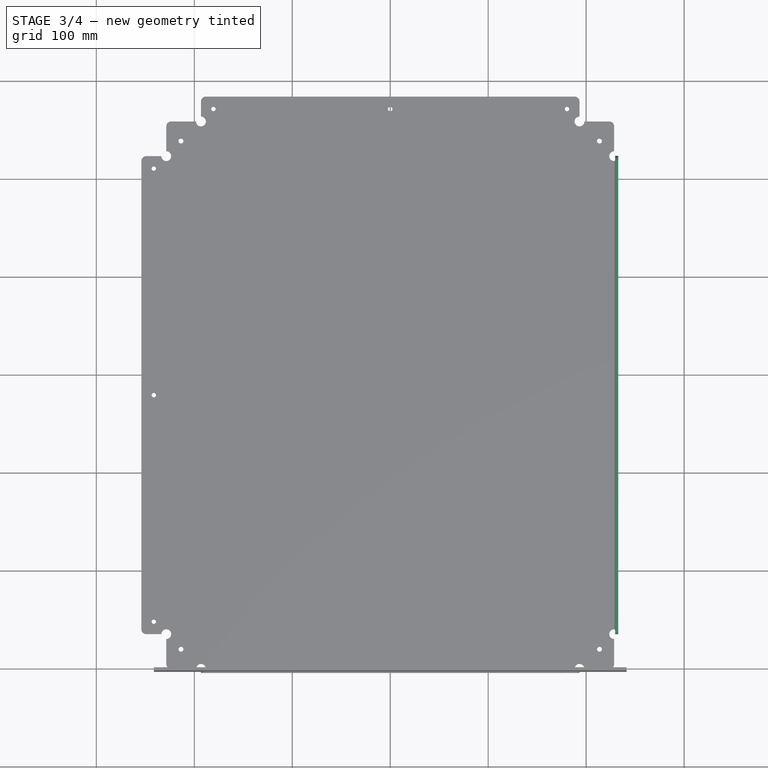
[diagram: stage 3 of 4 — top view after this stage's code; geometry added in this stage tinted green]
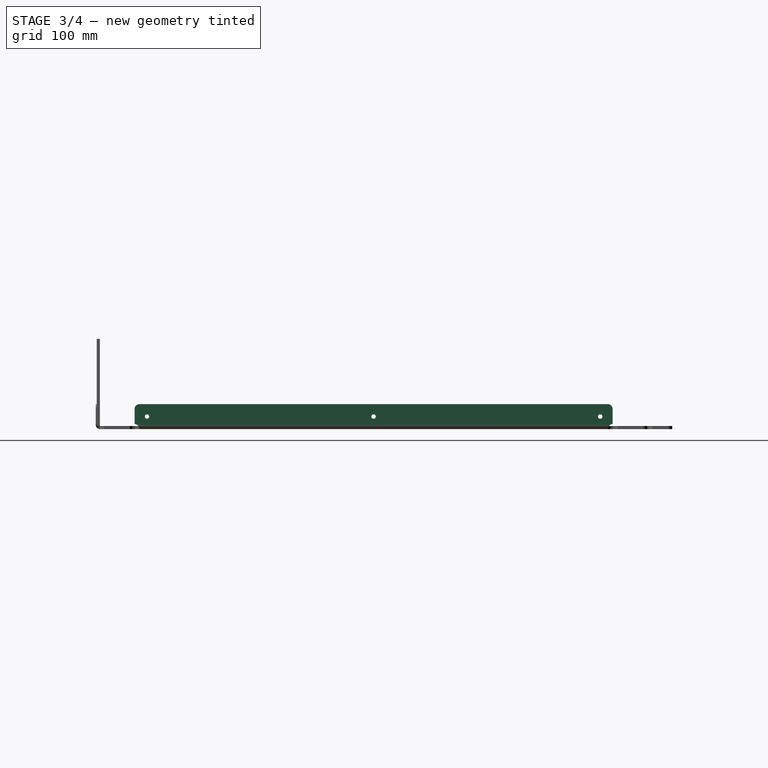
[diagram: stage 3 of 4 — right view after this stage's code; geometry added in this stage tinted green]
FEATURE [PartDesign::Pocket] Pocket  label="Pocket_FeetHoles"
  BaseFeature = -> Pocket001
  Length = 5
  Length2 = 100
  Profile = -> Sketch005
  Type = 1
FEATURE [PartDesign::FeaturePython] Fold  # WARN: FeaturePython — macro-defined, semantics opaque (R4)
  BaseFeature = -> Pocket
  BendLine = -> Sketch004
  Position = 0
  angle = 90
  baseObject = -> Pocket [Face4]
  invert = false
  invertbend = false
  kfactor = 0.5
  radius = 1
  unfold = false
FEATURE [PartDesign::FeaturePython] Fold001  # WARN: FeaturePython — macro-defined, semantics opaque (R4)
  BaseFeature = -> Fold
  BendLine = -> Sketch001
  Position = 0
  angle = 90
  baseObject = -> Fold [Face5]
  invert = false
  invertbend = false
  kfactor = 0.5
  radius = 1
  unfold = false
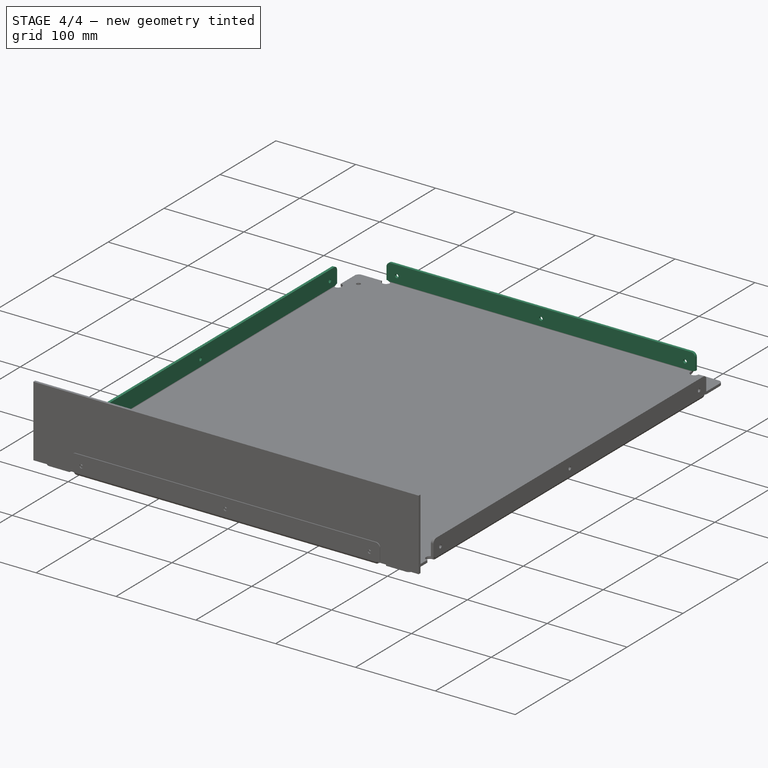
[diagram: stage 4 of 4 — iso view after this stage's code; geometry added in this stage tinted green]
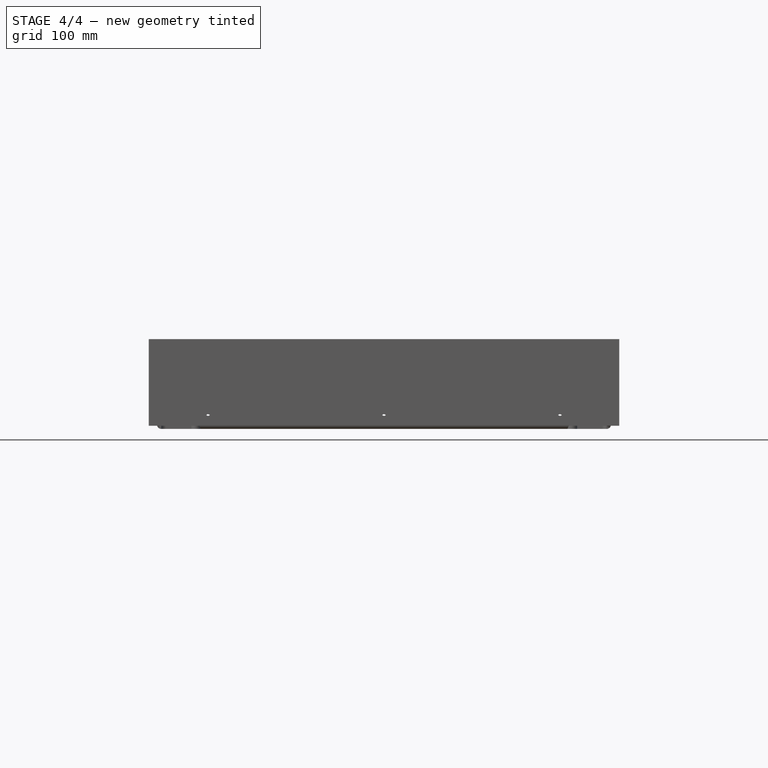
[diagram: stage 4 of 4 — front view after this stage's code; geometry added in this stage tinted green]
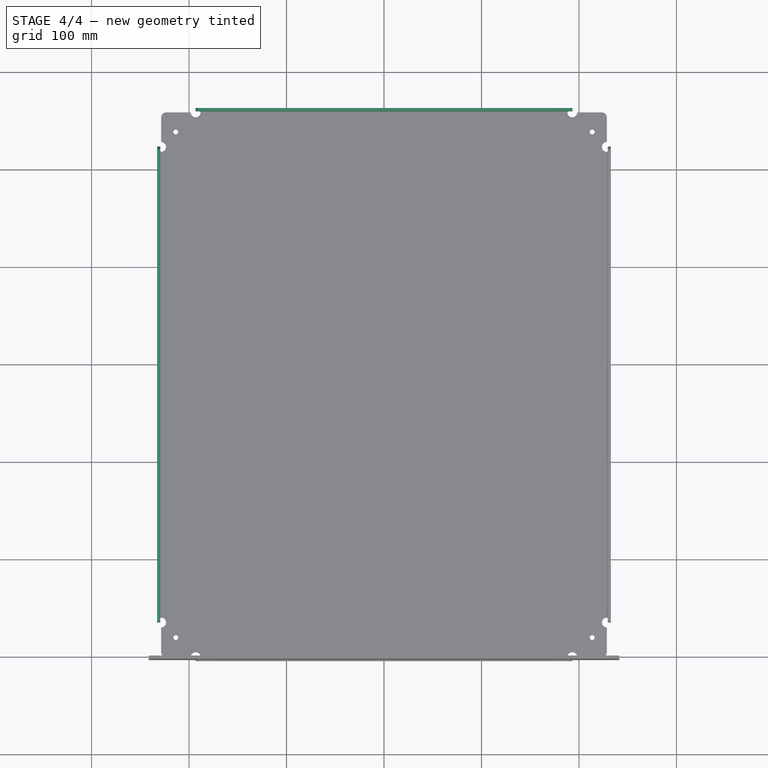
[diagram: stage 4 of 4 — top view after this stage's code; geometry added in this stage tinted green]
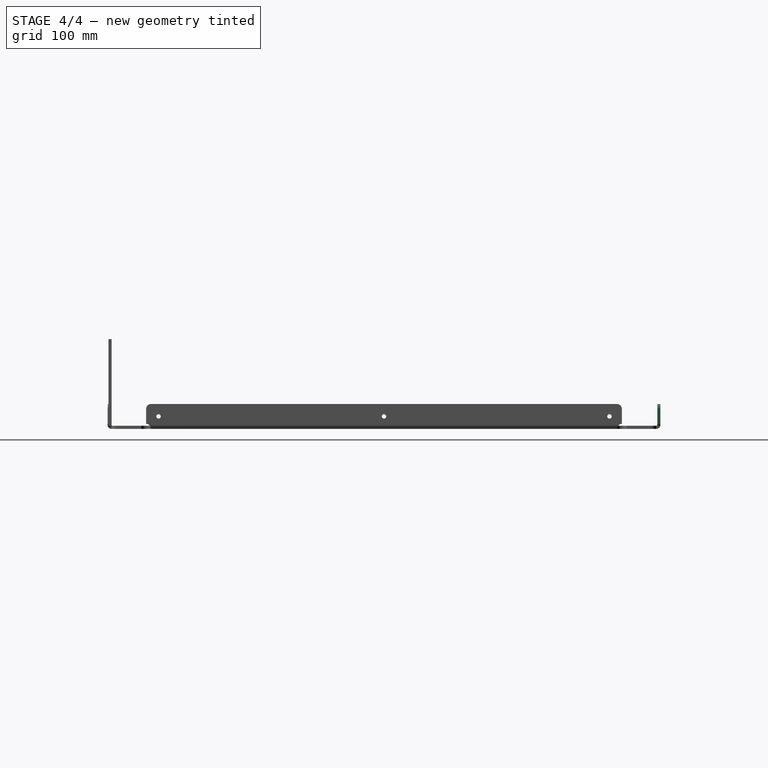
[diagram: stage 4 of 4 — right view after this stage's code; geometry added in this stage tinted green]
FEATURE [PartDesign::FeaturePython] Fold002  # WARN: FeaturePython — macro-defined, semantics opaque (R4)
  BaseFeature = -> Fold001
  BendLine = -> Sketch003
  Position = 0
  angle = 90
  baseObject = -> Fold001 [Face3]
  invert = false
  invertbend = false
  kfactor = 0.5
  radius = 1
  unfold = false
FEATURE [PartDesign::FeaturePython] Fold003  # WARN: FeaturePython — macro-defined, semantics opaque (R4)
  BaseFeature = -> Fold002
  BendLine = -> Sketch002
  Position = 0
  angle = 90
  baseObject = -> Fold002 [Face3]
  invert = false
  invertbend = false
  kfactor = 0.5
  radius = 1
  unfold = false
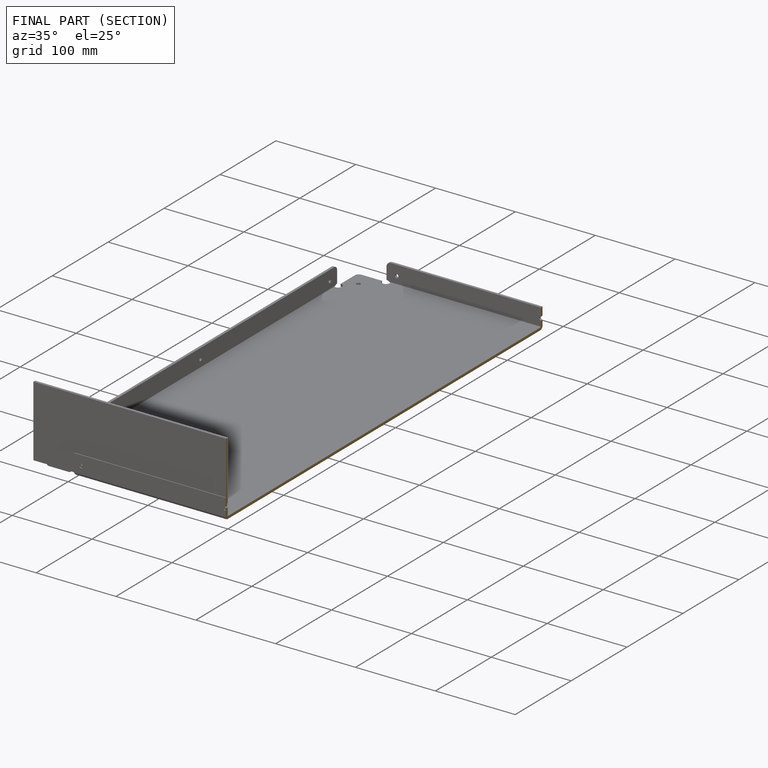
[diagram: finished part — half-section view (interior)]
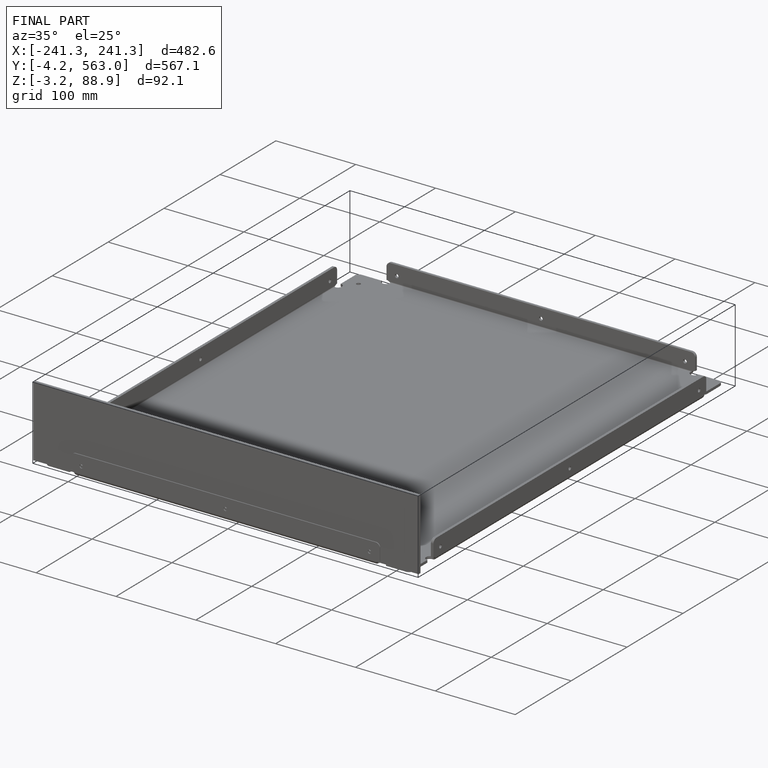
[diagram: finished part — iso view with bounding-box wireframe]
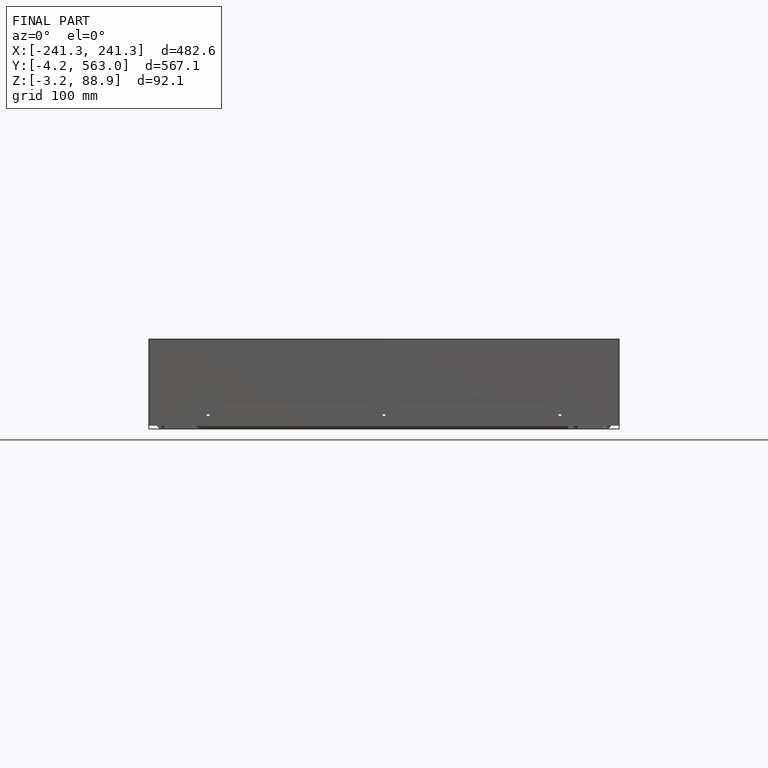
[diagram: finished part — front view with bounding-box wireframe]
